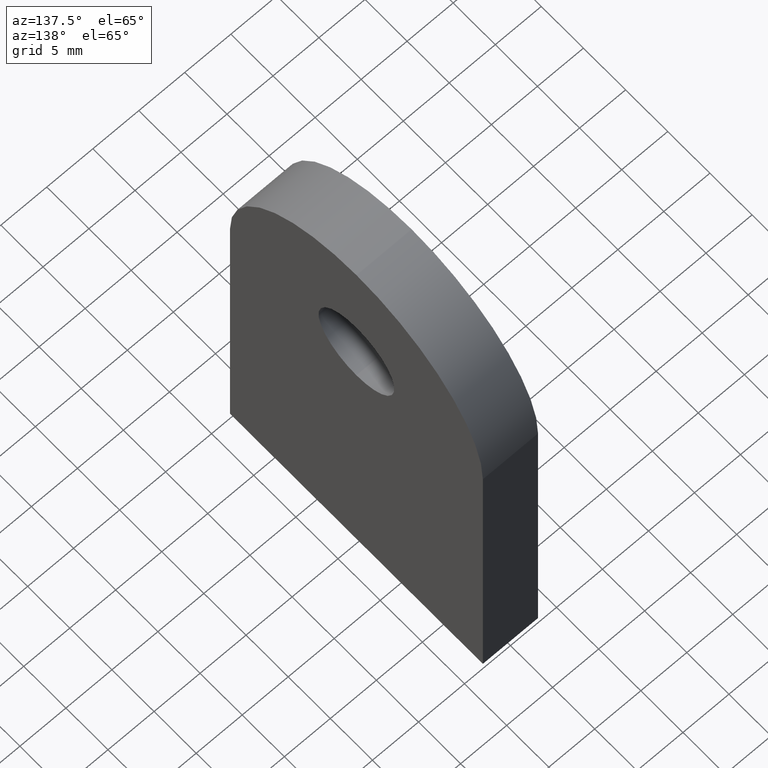
[diagram: clean part render]
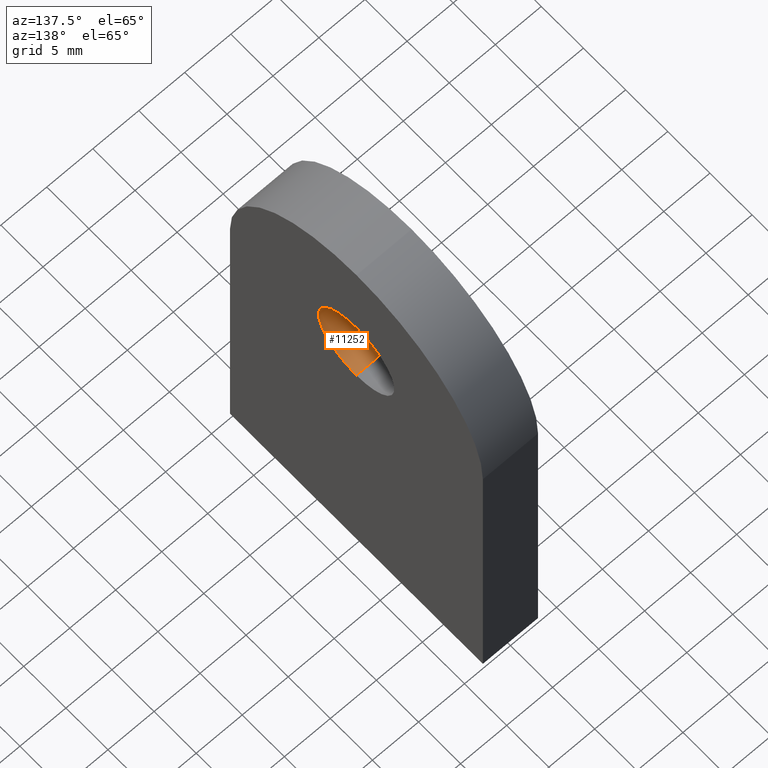
[diagram: same view with one face highlighted and labeled with its STEP entity id]
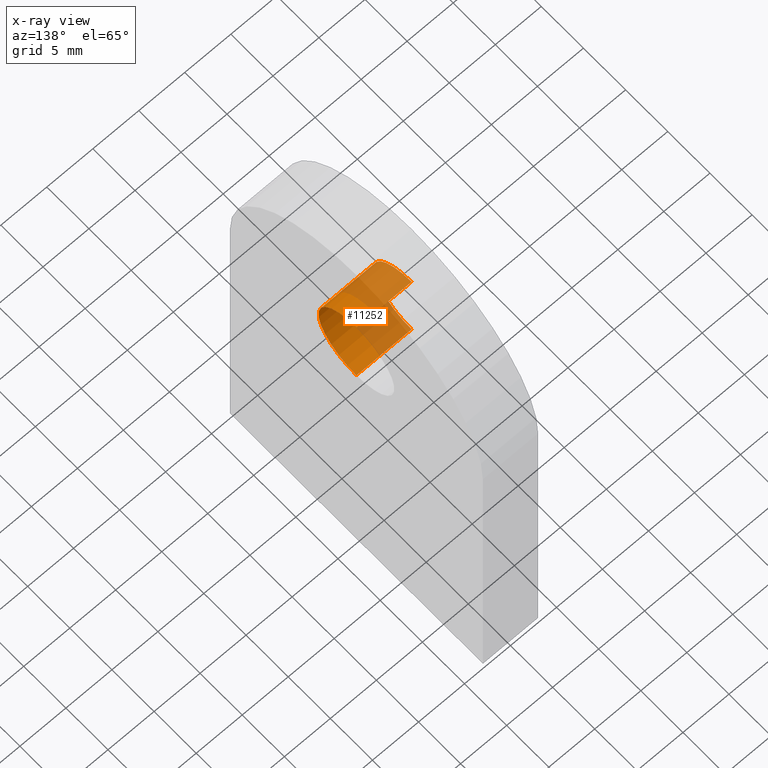
[diagram: x-ray of the same camera — body ghosted, the highlighted face saturated]
A machine part, auxiliary view. The second image highlights one B-rep face of the part: STEP entity #11252.
The next image is the same camera in x-ray: the body ghosted, the highlighted face saturated — about 54% of this face is hidden behind the body in this view.
In plain terms, the highlighted cylindrical surface (partial cylindrical patch) has radius 4.5 mm, axis along (1, -0, -0).
Its self-contained STEP definition (entity closure, byte-faithful):
#51 = EDGE_CURVE ( 'NONE', #5100, #8930, #252, .T. ) ;
#252 = CIRCLE ( 'NONE', #12067, 4.500000000000000900 ) ;
#351 = CIRCLE ( 'NONE', #12313, 4.500000000000000900 ) ;
#361 = CARTESIAN_POINT ( 'NONE',  ( -3.000000000000000000, 5.510910596163090500E-016, 40.00000000000000000 ) ) ;
#510 = DIRECTION ( 'NONE',  ( 1.000000000000000000, -0.0000000000000000000, -0.0000000000000000000 ) ) ;
#676 = DIRECTION ( 'NONE',  ( 1.000000000000000000, -0.0000000000000000000, -0.0000000000000000000 ) ) ;
#917 = EDGE_CURVE ( 'NONE', #8694, #5100, #5830, .T. ) ;
#1105 = DIRECTION ( 'NONE',  ( 0.0000000000000000000, 0.0000000000000000000, -1.000000000000000000 ) ) ;
#2089 = EDGE_CURVE ( 'NONE', #2984, #8930, #7899, .T. ) ;
#2531 = CARTESIAN_POINT ( 'NONE',  ( 3.000000000000000000, 0.0000000000000000000, 30.99999999999999600 ) ) ;
#2984 = VERTEX_POINT ( 'NONE', #11154 ) ;
#3275 = DIRECTION ( 'NONE',  ( 1.000000000000000000, 0.0000000000000000000, 0.0000000000000000000 ) ) ;
#3291 = ORIENTED_EDGE ( 'NONE', *, *, #51, .T. ) ;
#3808 = DIRECTION ( 'NONE',  ( 1.000000000000000000, 0.0000000000000000000, 0.0000000000000000000 ) ) ;
#4025 = EDGE_CURVE ( 'NONE', #8694, #2984, #351, .T. ) ;
#4321 = CARTESIAN_POINT ( 'NONE',  ( 3.000000000000000000, 5.510910596163087600E-016, 40.00000000000000000 ) ) ;
#4772 = VECTOR ( 'NONE', #6137, 1000.000000000000000 ) ;
#4908 = VECTOR ( 'NONE', #510, 1000.000000000000000 ) ;
#5100 = VERTEX_POINT ( 'NONE', #4321 ) ;
#5711 = ORIENTED_EDGE ( 'NONE', *, *, #2089, .F. ) ;
#5830 = LINE ( 'NONE', #361, #4772 ) ;
#5956 = CYLINDRICAL_SURFACE ( 'NONE', #9222, 4.500000000000000900 ) ;
#6137 = DIRECTION ( 'NONE',  ( 1.000000000000000000, -0.0000000000000000000, -0.0000000000000000000 ) ) ;
#6139 = DIRECTION ( 'NONE',  ( 0.0000000000000000000, 0.0000000000000000000, -1.000000000000000000 ) ) ;
#6880 = EDGE_LOOP ( 'NONE', ( #7743, #11221, #3291, #5711 ) ) ;
#7743 = ORIENTED_EDGE ( 'NONE', *, *, #4025, .F. ) ;
#7884 = FACE_OUTER_BOUND ( 'NONE', #6880, .T. ) ;
#7899 = LINE ( 'NONE', #11938, #4908 ) ;
#8084 = CARTESIAN_POINT ( 'NONE',  ( 3.000000000000000000, 0.0000000000000000000, 35.50000000000000000 ) ) ;
#8353 = DIRECTION ( 'NONE',  ( 0.0000000000000000000, 0.0000000000000000000, -1.000000000000000000 ) ) ;
#8694 = VERTEX_POINT ( 'NONE', #11618 ) ;
#8930 = VERTEX_POINT ( 'NONE', #2531 ) ;
#9222 = AXIS2_PLACEMENT_3D ( 'NONE', #10241, #676, #8353 ) ;
#10241 = CARTESIAN_POINT ( 'NONE',  ( -3.000000000000000000, 0.0000000000000000000, 35.50000000000000000 ) ) ;
#10633 = CARTESIAN_POINT ( 'NONE',  ( -3.000000000000000000, 0.0000000000000000000, 35.50000000000000000 ) ) ;
#11154 = CARTESIAN_POINT ( 'NONE',  ( -3.000000000000000000, 0.0000000000000000000, 30.99999999999999600 ) ) ;
#11221 = ORIENTED_EDGE ( 'NONE', *, *, #917, .T. ) ;
#11252 = ADVANCED_FACE ( 'NONE', ( #7884 ), #5956, .F. ) ;
#11618 = CARTESIAN_POINT ( 'NONE',  ( -3.000000000000000000, 5.510910596163087600E-016, 40.00000000000000000 ) ) ;
#11938 = CARTESIAN_POINT ( 'NONE',  ( -3.000000000000000000, 0.0000000000000000000, 30.99999999999999600 ) ) ;
#12067 = AXIS2_PLACEMENT_3D ( 'NONE', #8084, #3275, #6139 ) ;
#12313 = AXIS2_PLACEMENT_3D ( 'NONE', #10633, #3808, #1105 ) ;